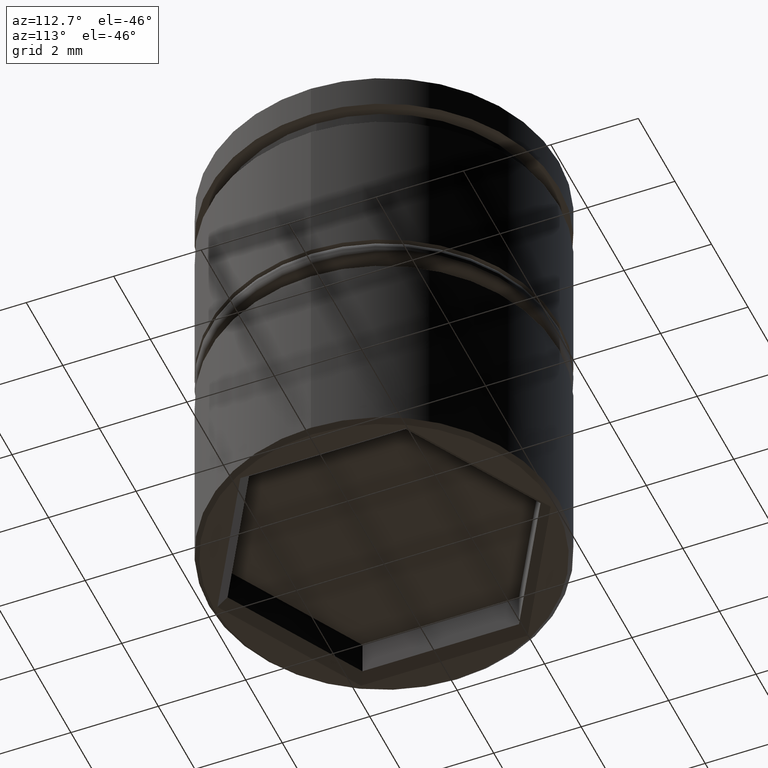
[diagram: clean part render]
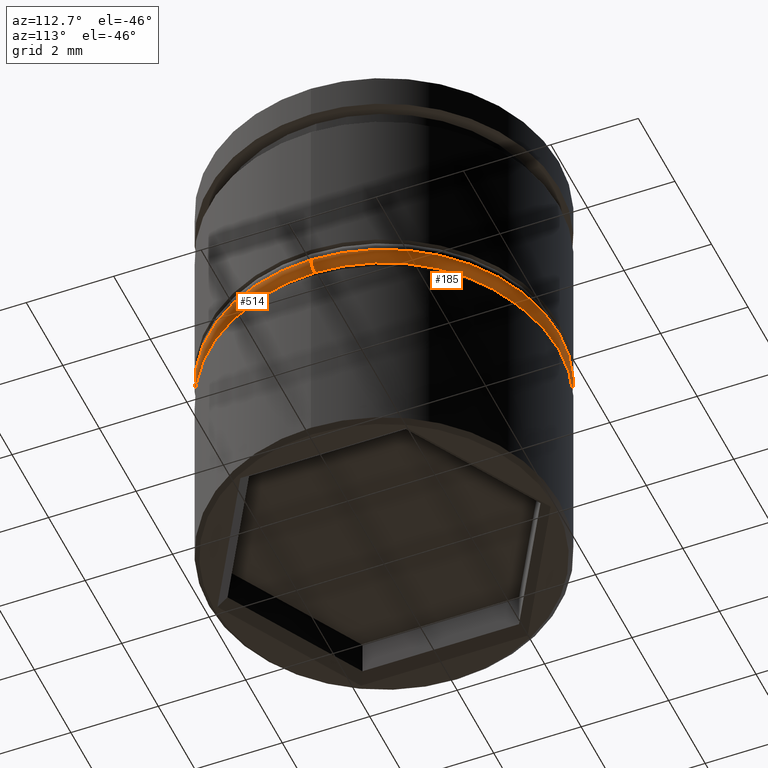
[diagram: same view with one multi-face feature highlighted, each face labeled with its STEP entity id]
A machine part, auxiliary view. The highlighted faces form ONE feature: a constant-radius fillet chain: 2 tangent blend faces with common blend radius 0.2 mm. The faces share edges in the B-rep.
Their STEP definitions:
[1] entity #514 (Torus):
#24 = VERTEX_POINT ( 'NONE', #909 ) ;
#33 = DIRECTION ( 'NONE',  ( 1.000000000000000000, 0.000000000000000000, 0.000000000000000000 ) ) ;
#68 = CARTESIAN_POINT ( 'NONE',  ( -4.000000000000000000, 4.898587196589412829E-16, -5.299999999999998934 ) ) ;
#90 = CARTESIAN_POINT ( 'NONE',  ( 3.799999999999999822, 0.000000000000000000, -5.499999999999999112 ) ) ;
#122 = DIRECTION ( 'NONE',  ( -0.000000000000000000, -0.000000000000000000, -1.000000000000000000 ) ) ;
#142 = CIRCLE ( 'NONE', #1129, 0.2000000000000000944 ) ;
#145 = ORIENTED_EDGE ( 'NONE', *, *, #574, .F. ) ;
#154 = EDGE_CURVE ( 'NONE', #941, #24, #1126, .T. ) ;
#157 = DIRECTION ( 'NONE',  ( -1.000000000000000000, 1.224646799147350742E-16, 0.000000000000000000 ) ) ;
#237 = DIRECTION ( 'NONE',  ( 0.000000000000000000, -1.000000000000000000, 0.000000000000000000 ) ) ;
#266 = TOROIDAL_SURFACE ( 'NONE', #780, 3.799999999999999822, 0.2000000000000000111 ) ;
#455 = VERTEX_POINT ( 'NONE', #90 ) ;
#461 = FACE_OUTER_BOUND ( 'NONE', #1024, .T. ) ;
#472 = CARTESIAN_POINT ( 'NONE',  ( 0.000000000000000000, 0.000000000000000000, -5.299999999999998934 ) ) ;
#500 = CARTESIAN_POINT ( 'NONE',  ( 0.000000000000000000, 0.000000000000000000, -5.499999999999999112 ) ) ;
#514 = ADVANCED_FACE ( 'NONE', ( #461 ), #266, .T. ) ;
#518 = CIRCLE ( 'NONE', #758, 3.799999999999999822 ) ;
#531 = CARTESIAN_POINT ( 'NONE',  ( 0.000000000000000000, 0.000000000000000000, -5.299999999999998934 ) ) ;
#533 = VERTEX_POINT ( 'NONE', #806 ) ;
#537 = AXIS2_PLACEMENT_3D ( 'NONE', #472, #1111, #842 ) ;
#556 = ORIENTED_EDGE ( 'NONE', *, *, #1142, .F. ) ;
#574 = EDGE_CURVE ( 'NONE', #455, #533, #518, .T. ) ;
#595 = DIRECTION ( 'NONE',  ( 1.224646799147353207E-16, 1.000000000000000000, -0.000000000000000000 ) ) ;
#610 = DIRECTION ( 'NONE',  ( 0.000000000000000000, 0.000000000000000000, -1.000000000000000000 ) ) ;
#621 = CIRCLE ( 'NONE', #1128, 0.1999999999999996503 ) ;
#623 = DIRECTION ( 'NONE',  ( 0.000000000000000000, 0.000000000000000000, 1.000000000000000000 ) ) ;
#758 = AXIS2_PLACEMENT_3D ( 'NONE', #500, #122, #33 ) ;
#776 = EDGE_CURVE ( 'NONE', #455, #24, #621, .T. ) ;
#780 = AXIS2_PLACEMENT_3D ( 'NONE', #531, #623, #893 ) ;
#806 = CARTESIAN_POINT ( 'NONE',  ( -3.799999999999999822, 4.776122516674677286E-16, -5.499999999999999112 ) ) ;
#842 = DIRECTION ( 'NONE',  ( 1.000000000000000000, 0.000000000000000000, 0.000000000000000000 ) ) ;
#893 = DIRECTION ( 'NONE',  ( 1.000000000000000000, 0.000000000000000000, 0.000000000000000000 ) ) ;
#904 = ORIENTED_EDGE ( 'NONE', *, *, #154, .F. ) ;
#909 = CARTESIAN_POINT ( 'NONE',  ( 4.000000000000000000, 0.000000000000000000, -5.299999999999998934 ) ) ;
#911 = CARTESIAN_POINT ( 'NONE',  ( -3.799999999999999822, 4.653657836759942730E-16, -5.299999999999998934 ) ) ;
#941 = VERTEX_POINT ( 'NONE', #68 ) ;
#968 = CARTESIAN_POINT ( 'NONE',  ( 3.799999999999999822, 0.000000000000000000, -5.299999999999998934 ) ) ;
#1017 = ORIENTED_EDGE ( 'NONE', *, *, #776, .T. ) ;
#1024 = EDGE_LOOP ( 'NONE', ( #556, #145, #1017, #904 ) ) ;
#1111 = DIRECTION ( 'NONE',  ( 0.000000000000000000, 0.000000000000000000, 1.000000000000000000 ) ) ;
#1126 = CIRCLE ( 'NONE', #537, 4.000000000000000000 ) ;
#1128 = AXIS2_PLACEMENT_3D ( 'NONE', #968, #237, #610 ) ;
#1129 = AXIS2_PLACEMENT_3D ( 'NONE', #911, #595, #157 ) ;
#1142 = EDGE_CURVE ( 'NONE', #533, #941, #142, .T. ) ;
[2] entity #185 (Torus):
#1 = EDGE_CURVE ( 'NONE', #533, #455, #37, .T. ) ;
#16 = AXIS2_PLACEMENT_3D ( 'NONE', #663, #220, #501 ) ;
#24 = VERTEX_POINT ( 'NONE', #909 ) ;
#34 = ORIENTED_EDGE ( 'NONE', *, *, #427, .F. ) ;
#37 = CIRCLE ( 'NONE', #432, 3.799999999999999822 ) ;
#68 = CARTESIAN_POINT ( 'NONE',  ( -4.000000000000000000, 4.898587196589412829E-16, -5.299999999999998934 ) ) ;
#90 = CARTESIAN_POINT ( 'NONE',  ( 3.799999999999999822, 0.000000000000000000, -5.499999999999999112 ) ) ;
#96 = ORIENTED_EDGE ( 'NONE', *, *, #1142, .T. ) ;
#125 = ORIENTED_EDGE ( 'NONE', *, *, #1, .F. ) ;
#142 = CIRCLE ( 'NONE', #1129, 0.2000000000000000944 ) ;
#157 = DIRECTION ( 'NONE',  ( -1.000000000000000000, 1.224646799147350742E-16, 0.000000000000000000 ) ) ;
#185 = ADVANCED_FACE ( 'NONE', ( #400 ), #701, .T. ) ;
#207 = CARTESIAN_POINT ( 'NONE',  ( 0.000000000000000000, 0.000000000000000000, -5.499999999999999112 ) ) ;
#220 = DIRECTION ( 'NONE',  ( 0.000000000000000000, 0.000000000000000000, 1.000000000000000000 ) ) ;
#237 = DIRECTION ( 'NONE',  ( 0.000000000000000000, -1.000000000000000000, 0.000000000000000000 ) ) ;
#400 = FACE_OUTER_BOUND ( 'NONE', #612, .T. ) ;
#427 = EDGE_CURVE ( 'NONE', #24, #941, #488, .T. ) ;
#432 = AXIS2_PLACEMENT_3D ( 'NONE', #207, #656, #837 ) ;
#455 = VERTEX_POINT ( 'NONE', #90 ) ;
#488 = CIRCLE ( 'NONE', #705, 4.000000000000000000 ) ;
#501 = DIRECTION ( 'NONE',  ( 1.000000000000000000, 0.000000000000000000, 0.000000000000000000 ) ) ;
#515 = CARTESIAN_POINT ( 'NONE',  ( 0.000000000000000000, 0.000000000000000000, -5.299999999999998934 ) ) ;
#533 = VERTEX_POINT ( 'NONE', #806 ) ;
#586 = ORIENTED_EDGE ( 'NONE', *, *, #776, .F. ) ;
#595 = DIRECTION ( 'NONE',  ( 1.224646799147353207E-16, 1.000000000000000000, -0.000000000000000000 ) ) ;
#610 = DIRECTION ( 'NONE',  ( 0.000000000000000000, 0.000000000000000000, -1.000000000000000000 ) ) ;
#612 = EDGE_LOOP ( 'NONE', ( #125, #96, #34, #586 ) ) ;
#621 = CIRCLE ( 'NONE', #1128, 0.1999999999999996503 ) ;
#656 = DIRECTION ( 'NONE',  ( -0.000000000000000000, -0.000000000000000000, -1.000000000000000000 ) ) ;
#663 = CARTESIAN_POINT ( 'NONE',  ( 0.000000000000000000, 0.000000000000000000, -5.299999999999998934 ) ) ;
#701 = TOROIDAL_SURFACE ( 'NONE', #16, 3.799999999999999822, 0.2000000000000000111 ) ;
#705 = AXIS2_PLACEMENT_3D ( 'NONE', #515, #1154, #1073 ) ;
#776 = EDGE_CURVE ( 'NONE', #455, #24, #621, .T. ) ;
#806 = CARTESIAN_POINT ( 'NONE',  ( -3.799999999999999822, 4.776122516674677286E-16, -5.499999999999999112 ) ) ;
#837 = DIRECTION ( 'NONE',  ( 1.000000000000000000, 0.000000000000000000, 0.000000000000000000 ) ) ;
#909 = CARTESIAN_POINT ( 'NONE',  ( 4.000000000000000000, 0.000000000000000000, -5.299999999999998934 ) ) ;
#911 = CARTESIAN_POINT ( 'NONE',  ( -3.799999999999999822, 4.653657836759942730E-16, -5.299999999999998934 ) ) ;
#941 = VERTEX_POINT ( 'NONE', #68 ) ;
#968 = CARTESIAN_POINT ( 'NONE',  ( 3.799999999999999822, 0.000000000000000000, -5.299999999999998934 ) ) ;
#1073 = DIRECTION ( 'NONE',  ( 1.000000000000000000, 0.000000000000000000, 0.000000000000000000 ) ) ;
#1128 = AXIS2_PLACEMENT_3D ( 'NONE', #968, #237, #610 ) ;
#1129 = AXIS2_PLACEMENT_3D ( 'NONE', #911, #595, #157 ) ;
#1142 = EDGE_CURVE ( 'NONE', #533, #941, #142, .T. ) ;
#1154 = DIRECTION ( 'NONE',  ( 0.000000000000000000, 0.000000000000000000, 1.000000000000000000 ) ) ;